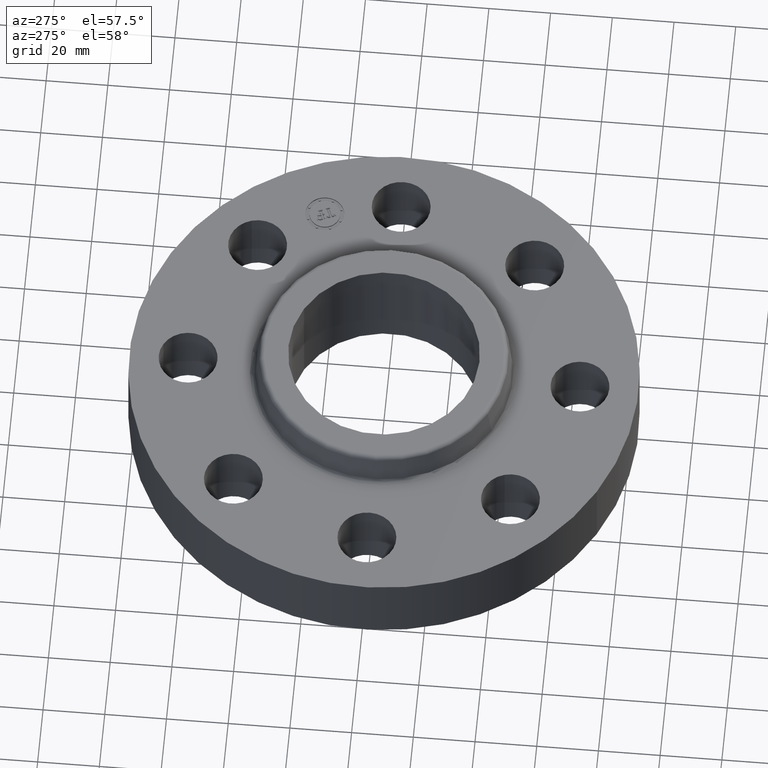
[diagram: clean part render]
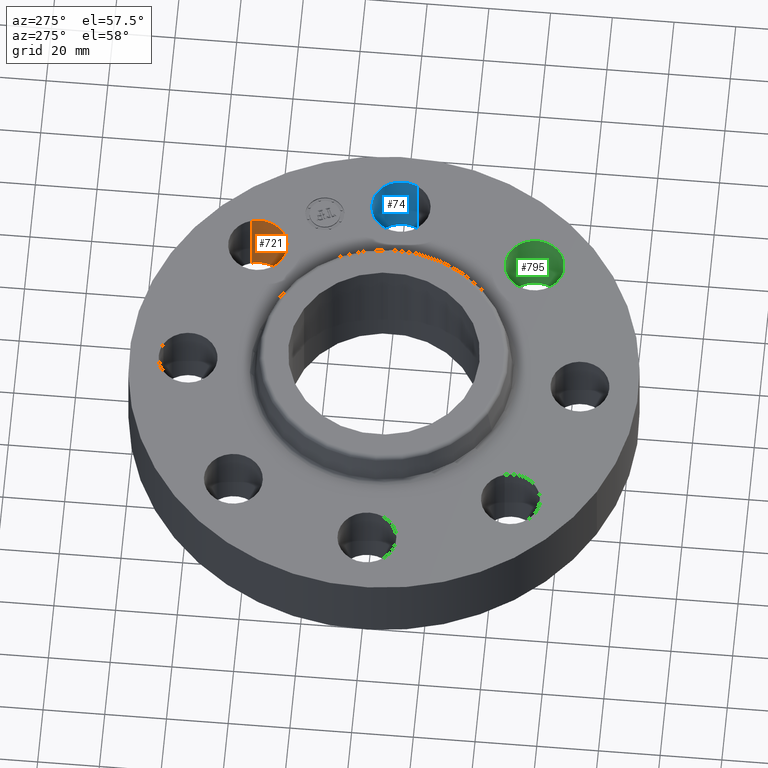
[diagram: same view with three faces highlighted in distinct colors, each labeled with its STEP entity id]
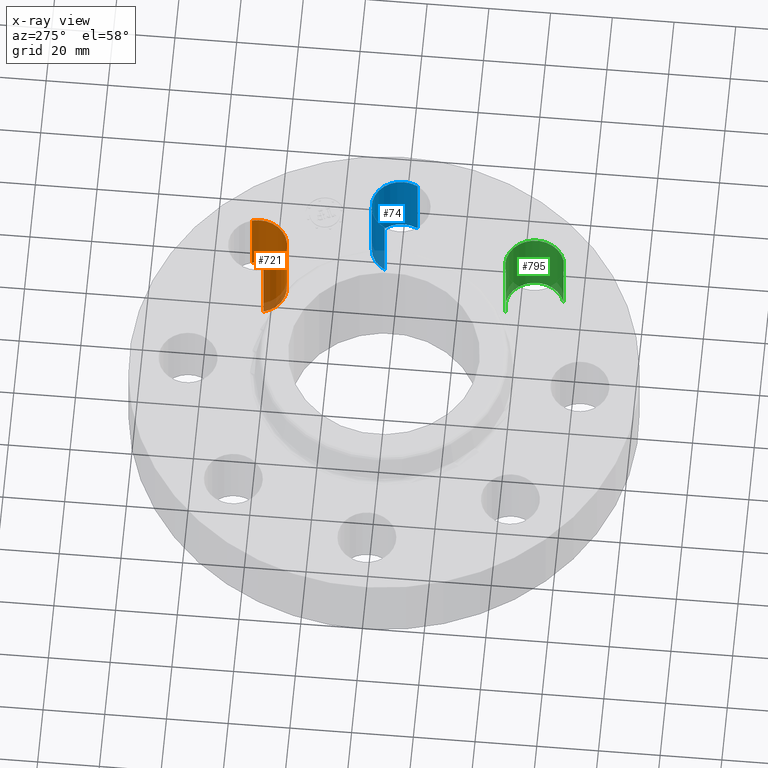
[diagram: x-ray of the same camera — body ghosted, the three highlighted faces saturated]
A machine part, auxiliary view with three faces highlighted in distinct colors.
The next image is the same camera in x-ray (body ghosted, the three faces saturated) — at least one of them is partly hidden behind the body in this view.
Their STEP definitions:

[orange] entity #721 — the highlighted cylindrical surface (edge-blend (fillet) strip) has radius 9.525 mm, axis along (0, 0, -1).
#499=AXIS2_PLACEMENT_3D('Circle Axis2P3D',#497,#498,$) ;
#682=AXIS2_PLACEMENT_3D('Cylinder Axis2P3D',#679,#680,#681) ;
#712=AXIS2_PLACEMENT_3D('Circle Axis2P3D',#710,#711,$) ;
#492=CARTESIAN_POINT('Vertex',(1.40793584173,1.66218962879,0.)) ;
#494=CARTESIAN_POINT('Vertex',(2.12759806422,1.87334427715,0.)) ;
#497=CARTESIAN_POINT('Axis2P3D Location',(1.76776695297,1.76776695297,0.)) ;
#679=CARTESIAN_POINT('Axis2P3D Location',(1.76776695297,1.76776695297,0.99606299213)) ;
#684=CARTESIAN_POINT('Line Origine',(1.40793584173,1.66218962879,0.500000000002)) ;
#688=CARTESIAN_POINT('Vertex',(1.40793584173,1.66218962879,1.)) ;
#691=CARTESIAN_POINT('Line Origine',(2.12759806422,1.87334427715,0.500000000002)) ;
#695=CARTESIAN_POINT('Vertex',(2.12759806422,1.87334427715,1.)) ;
#710=CARTESIAN_POINT('Axis2P3D Location',(1.76776695297,1.76776695297,1.)) ;
#498=DIRECTION('Axis2P3D Direction',(0.,0.,-0.0393700787402)) ;
#680=DIRECTION('Axis2P3D Direction',(0.,0.,-0.0393700787402)) ;
#681=DIRECTION('Axis2P3D XDirection',(0.0377775444876,0.0110842335096,0.)) ;
#685=DIRECTION('Vector Direction',(0.,0.,-0.0393700787402)) ;
#692=DIRECTION('Vector Direction',(0.,0.,-0.0393700787402)) ;
#711=DIRECTION('Axis2P3D Direction',(0.,0.,-0.0393700787402)) ;
#686=VECTOR('Line Direction',#685,0.0393700787402) ;
#693=VECTOR('Line Direction',#692,0.0393700787402) ;
#716=ORIENTED_EDGE('',*,*,#697,.F.) ;
#717=ORIENTED_EDGE('',*,*,#501,.T.) ;
#718=ORIENTED_EDGE('',*,*,#690,.T.) ;
#719=ORIENTED_EDGE('',*,*,#714,.F.) ;
#721=ADVANCED_FACE('PartBody',(#720),#683,.F.) ;
#500=CIRCLE('generated circle',#499,0.375000000001) ;
#713=CIRCLE('generated circle',#712,0.375000000001) ;
#683=CYLINDRICAL_SURFACE('generated cylinder',#682,0.375000000001) ;
#501=EDGE_CURVE('',#495,#493,#500,.T.) ;
#690=EDGE_CURVE('',#493,#689,#687,.F.) ;
#697=EDGE_CURVE('',#495,#696,#694,.F.) ;
#714=EDGE_CURVE('',#696,#689,#713,.T.) ;
#715=EDGE_LOOP('',(#716,#717,#718,#719)) ;
#720=FACE_OUTER_BOUND('',#715,.T.) ;
#687=LINE('Line',#684,#686) ;
#694=LINE('Line',#691,#693) ;
#493=VERTEX_POINT('',#492) ;
#495=VERTEX_POINT('',#494) ;
#689=VERTEX_POINT('',#688) ;
#696=VERTEX_POINT('',#695) ;

[blue] entity #74 — the highlighted cylindrical surface (edge-blend (fillet) strip) has radius 9.525 mm, axis along (0, -0, -1).
#38=AXIS2_PLACEMENT_3D('Cylinder Axis2P3D',#35,#36,#37) ;
#51=AXIS2_PLACEMENT_3D('Circle Axis2P3D',#49,#50,$) ;
#65=AXIS2_PLACEMENT_3D('Circle Axis2P3D',#63,#64,$) ;
#35=CARTESIAN_POINT('Axis2P3D Location',(2.50000000001,0.,0.99606299213)) ;
#40=CARTESIAN_POINT('Line Origine',(2.1709065393,0.179784576977,0.500000000002)) ;
#44=CARTESIAN_POINT('Vertex',(2.1709065393,0.179784576977,0.)) ;
#46=CARTESIAN_POINT('Vertex',(2.1709065393,0.179784576977,1.)) ;
#49=CARTESIAN_POINT('Axis2P3D Location',(2.50000000001,0.,0.)) ;
#53=CARTESIAN_POINT('Vertex',(2.82909346072,-0.179784576977,0.)) ;
#56=CARTESIAN_POINT('Line Origine',(2.82909346072,-0.179784576977,0.500000000002)) ;
#60=CARTESIAN_POINT('Vertex',(2.82909346072,-0.179784576977,1.)) ;
#63=CARTESIAN_POINT('Axis2P3D Location',(2.50000000001,0.,1.)) ;
#36=DIRECTION('Axis2P3D Direction',(0.,-0.,-0.0393700787402)) ;
#37=DIRECTION('Axis2P3D XDirection',(0.0345504945626,-0.0188750212049,0.)) ;
#41=DIRECTION('Vector Direction',(0.,0.,-0.0393700787402)) ;
#50=DIRECTION('Axis2P3D Direction',(0.,-0.,-0.0393700787402)) ;
#57=DIRECTION('Vector Direction',(0.,0.,-0.0393700787402)) ;
#64=DIRECTION('Axis2P3D Direction',(0.,-0.,-0.0393700787402)) ;
#42=VECTOR('Line Direction',#41,0.0393700787402) ;
#58=VECTOR('Line Direction',#57,0.0393700787402) ;
#69=ORIENTED_EDGE('',*,*,#48,.F.) ;
#70=ORIENTED_EDGE('',*,*,#55,.T.) ;
#71=ORIENTED_EDGE('',*,*,#62,.T.) ;
#72=ORIENTED_EDGE('',*,*,#67,.F.) ;
#74=ADVANCED_FACE('PartBody',(#73),#39,.F.) ;
#52=CIRCLE('generated circle',#51,0.375000000002) ;
#66=CIRCLE('generated circle',#65,0.375000000002) ;
#39=CYLINDRICAL_SURFACE('generated cylinder',#38,0.375000000002) ;
#48=EDGE_CURVE('',#45,#47,#43,.F.) ;
#55=EDGE_CURVE('',#45,#54,#52,.T.) ;
#62=EDGE_CURVE('',#54,#61,#59,.F.) ;
#67=EDGE_CURVE('',#47,#61,#66,.T.) ;
#68=EDGE_LOOP('',(#69,#70,#71,#72)) ;
#73=FACE_OUTER_BOUND('',#68,.T.) ;
#43=LINE('Line',#40,#42) ;
#59=LINE('Line',#56,#58) ;
#45=VERTEX_POINT('',#44) ;
#47=VERTEX_POINT('',#46) ;
#54=VERTEX_POINT('',#53) ;
#61=VERTEX_POINT('',#60) ;

[green] entity #795 — the highlighted cylindrical surface (edge-blend (fillet) strip) has radius 9.525 mm, axis along (0, -0, -1).
#382=AXIS2_PLACEMENT_3D('Circle Axis2P3D',#380,#381,$) ;
#768=AXIS2_PLACEMENT_3D('Cylinder Axis2P3D',#765,#766,#767) ;
#786=AXIS2_PLACEMENT_3D('Circle Axis2P3D',#784,#785,$) ;
#380=CARTESIAN_POINT('Axis2P3D Location',(1.76776695297,-1.76776695297,0.)) ;
#384=CARTESIAN_POINT('Vertex',(1.66218962879,-1.40793584173,0.)) ;
#386=CARTESIAN_POINT('Vertex',(1.87334427715,-2.12759806422,0.)) ;
#765=CARTESIAN_POINT('Axis2P3D Location',(1.76776695297,-1.76776695297,0.99606299213)) ;
#770=CARTESIAN_POINT('Line Origine',(1.66218962879,-1.40793584173,0.500000000002)) ;
#774=CARTESIAN_POINT('Vertex',(1.66218962879,-1.40793584173,1.)) ;
#777=CARTESIAN_POINT('Line Origine',(1.87334427715,-2.12759806422,0.500000000002)) ;
#781=CARTESIAN_POINT('Vertex',(1.87334427715,-2.12759806422,1.)) ;
#784=CARTESIAN_POINT('Axis2P3D Location',(1.76776695297,-1.76776695297,1.)) ;
#381=DIRECTION('Axis2P3D Direction',(0.,0.,-0.0393700787402)) ;
#766=DIRECTION('Axis2P3D Direction',(0.,-0.,-0.0393700787402)) ;
#767=DIRECTION('Axis2P3D XDirection',(0.0110842335096,-0.0377775444876,0.)) ;
#771=DIRECTION('Vector Direction',(0.,0.,-0.0393700787402)) ;
#778=DIRECTION('Vector Direction',(0.,0.,-0.0393700787402)) ;
#785=DIRECTION('Axis2P3D Direction',(0.,-0.,-0.0393700787402)) ;
#772=VECTOR('Line Direction',#771,0.0393700787402) ;
#779=VECTOR('Line Direction',#778,0.0393700787402) ;
#790=ORIENTED_EDGE('',*,*,#776,.F.) ;
#791=ORIENTED_EDGE('',*,*,#388,.T.) ;
#792=ORIENTED_EDGE('',*,*,#783,.T.) ;
#793=ORIENTED_EDGE('',*,*,#788,.F.) ;
#795=ADVANCED_FACE('PartBody',(#794),#769,.F.) ;
#383=CIRCLE('generated circle',#382,0.375000000001) ;
#787=CIRCLE('generated circle',#786,0.375000000001) ;
#769=CYLINDRICAL_SURFACE('generated cylinder',#768,0.375000000001) ;
#388=EDGE_CURVE('',#385,#387,#383,.T.) ;
#776=EDGE_CURVE('',#385,#775,#773,.F.) ;
#783=EDGE_CURVE('',#387,#782,#780,.F.) ;
#788=EDGE_CURVE('',#775,#782,#787,.T.) ;
#789=EDGE_LOOP('',(#790,#791,#792,#793)) ;
#794=FACE_OUTER_BOUND('',#789,.T.) ;
#773=LINE('Line',#770,#772) ;
#780=LINE('Line',#777,#779) ;
#385=VERTEX_POINT('',#384) ;
#387=VERTEX_POINT('',#386) ;
#775=VERTEX_POINT('',#774) ;
#782=VERTEX_POINT('',#781) ;